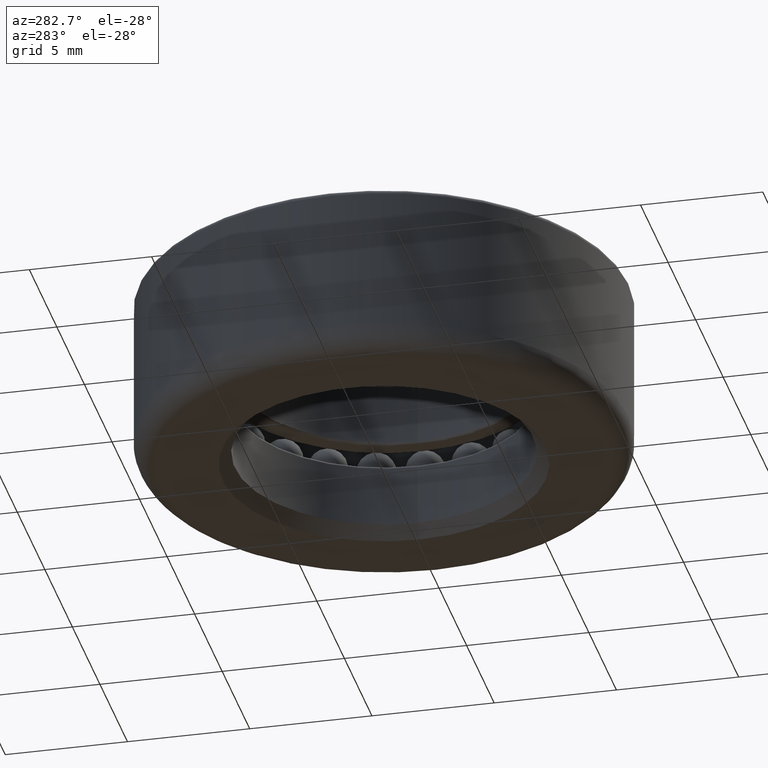
[diagram: clean part render]
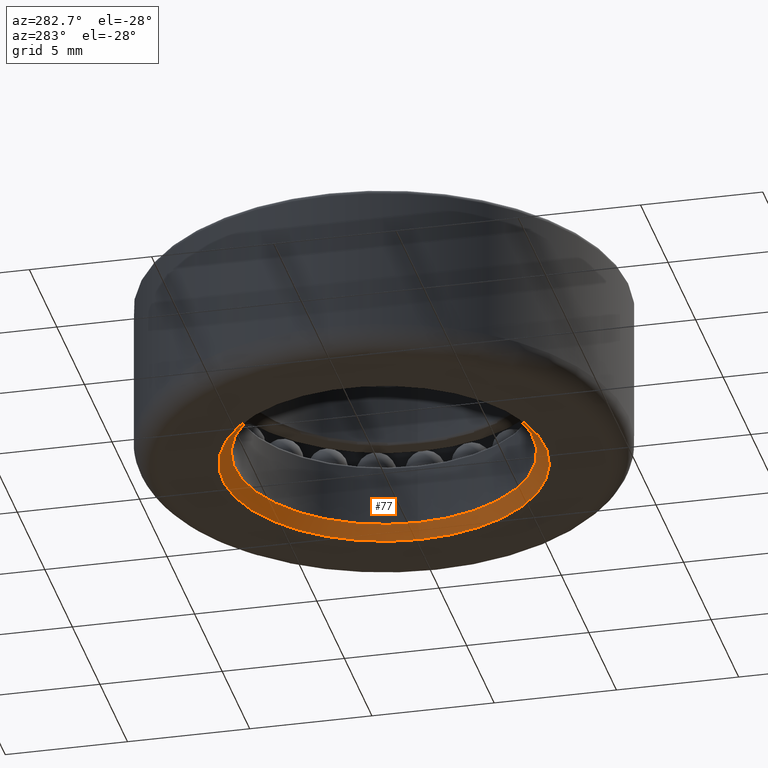
[diagram: same view with one face highlighted and labeled with its STEP entity id]
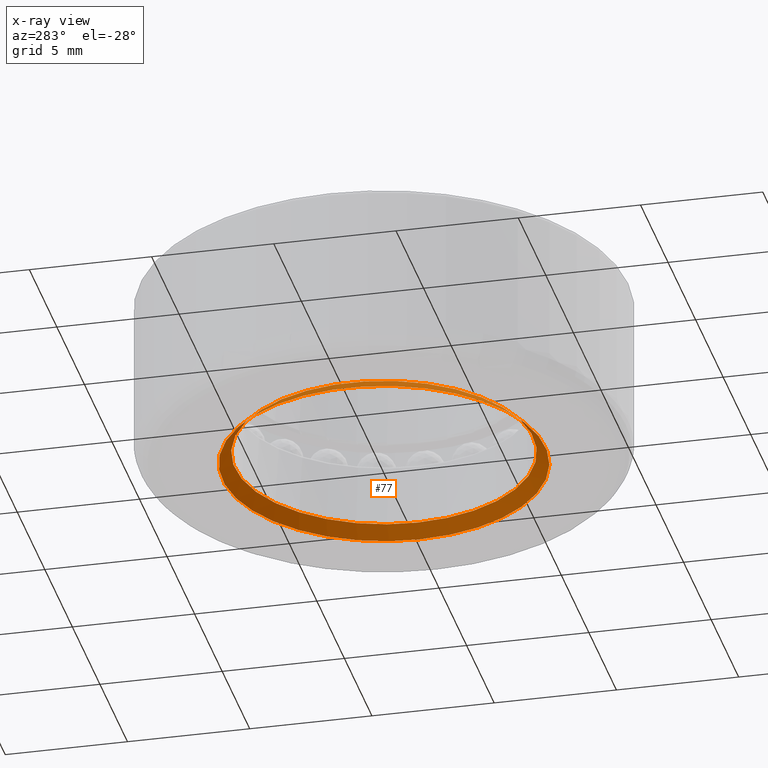
[diagram: x-ray of the same camera — body ghosted, the highlighted face saturated]
A machine part, auxiliary view. The second image highlights one B-rep face of the part: STEP entity #77.
The next image is the same camera in x-ray: the body ghosted, the highlighted face saturated — about 0% of this face is hidden behind the body in this view.
In plain terms, the highlighted conical surface has half-angle 45 deg.
Its self-contained STEP definition (entity closure, byte-faithful):
#48 = VERTEX_POINT ( 'NONE', #401 ) ;
#67 = AXIS2_PLACEMENT_3D ( 'NONE', #487, #246, #611 ) ;
#77 = ADVANCED_FACE ( 'NONE', ( #632, #147 ), #255, .F. ) ;
#92 = CARTESIAN_POINT ( 'NONE',  ( 0.0000000000000000000, 0.0000000000000000000, -3.600000000000000100 ) ) ;
#118 = EDGE_CURVE ( 'NONE', #408, #408, #228, .T. ) ;
#147 = FACE_OUTER_BOUND ( 'NONE', #392, .T. ) ;
#186 = DIRECTION ( 'NONE',  ( -0.0000000000000000000, -0.0000000000000000000, 1.000000000000000000 ) ) ;
#217 = EDGE_CURVE ( 'NONE', #48, #48, #439, .T. ) ;
#223 = DIRECTION ( 'NONE',  ( -1.000000000000000000, 0.0000000000000000000, 0.0000000000000000000 ) ) ;
#228 = CIRCLE ( 'NONE', #774, 6.599999999999996100 ) ;
#246 = DIRECTION ( 'NONE',  ( -0.0000000000000000000, -0.0000000000000000000, -1.000000000000000000 ) ) ;
#254 = ORIENTED_EDGE ( 'NONE', *, *, #217, .F. ) ;
#255 = CONICAL_SURFACE ( 'NONE', #575, 6.599999999999996100, 0.7853981633974465000 ) ;
#372 = DIRECTION ( 'NONE',  ( 1.000000000000000000, 0.0000000000000000000, 0.0000000000000000000 ) ) ;
#392 = EDGE_LOOP ( 'NONE', ( #579 ) ) ;
#401 = CARTESIAN_POINT ( 'NONE',  ( 6.099999999999999600, 0.0000000000000000000, -3.100000000000001000 ) ) ;
#408 = VERTEX_POINT ( 'NONE', #459 ) ;
#439 = CIRCLE ( 'NONE', #67, 6.099999999999999600 ) ;
#459 = CARTESIAN_POINT ( 'NONE',  ( 6.599999999999996100, 0.0000000000000000000, -3.600000000000000100 ) ) ;
#472 = EDGE_LOOP ( 'NONE', ( #254 ) ) ;
#487 = CARTESIAN_POINT ( 'NONE',  ( 0.0000000000000000000, 0.0000000000000000000, -3.100000000000001000 ) ) ;
#575 = AXIS2_PLACEMENT_3D ( 'NONE', #92, #582, #223 ) ;
#579 = ORIENTED_EDGE ( 'NONE', *, *, #118, .F. ) ;
#582 = DIRECTION ( 'NONE',  ( -0.0000000000000000000, -0.0000000000000000000, -1.000000000000000000 ) ) ;
#611 = DIRECTION ( 'NONE',  ( 1.000000000000000000, 0.0000000000000000000, 0.0000000000000000000 ) ) ;
#632 = FACE_BOUND ( 'NONE', #472, .T. ) ;
#668 = CARTESIAN_POINT ( 'NONE',  ( 0.0000000000000000000, 0.0000000000000000000, -3.600000000000000100 ) ) ;
#774 = AXIS2_PLACEMENT_3D ( 'NONE', #668, #186, #372 ) ;